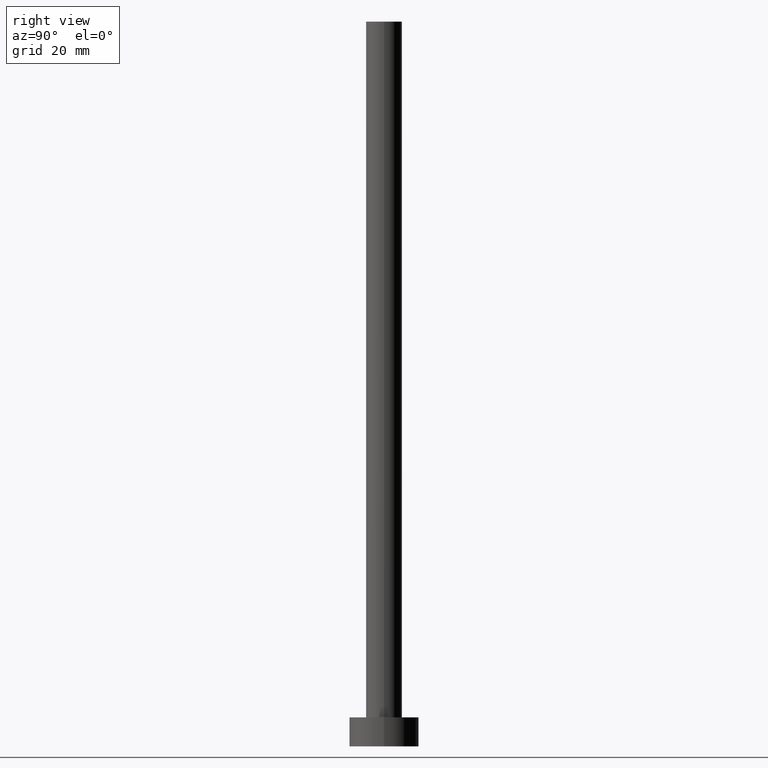
[diagram: clean part render]
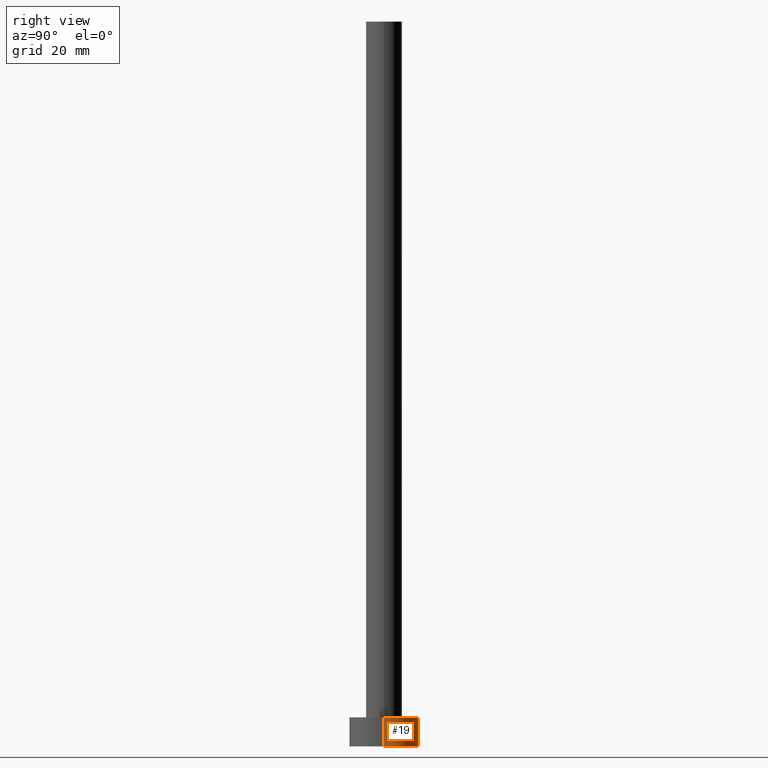
[diagram: same view with one face highlighted and labeled with its STEP entity id]
A machine part, right view. The second image highlights one B-rep face of the part: STEP entity #19.
In plain terms, the highlighted cylindrical surface (edge-blend (fillet) strip) has radius 6 mm, axis along (-0, -0, -1).
Its self-contained STEP definition (entity closure, byte-faithful):
#1 = CARTESIAN_POINT ( 'NONE',  ( 6.000000000000000888, 7.347880794884120722E-16, 5.000000000000000000 ) ) ;
#7 = CYLINDRICAL_SURFACE ( 'NONE', #59, 6.000000000000000888 ) ;
#10 = CARTESIAN_POINT ( 'NONE',  ( 0.000000000000000000, 0.000000000000000000, 5.000000000000000000 ) ) ;
#15 = DIRECTION ( 'NONE',  ( -0.000000000000000000, -0.000000000000000000, -1.000000000000000000 ) ) ;
#19 = ADVANCED_FACE ( 'NONE', ( #202 ), #7, .T. ) ;
#24 = AXIS2_PLACEMENT_3D ( 'NONE', #29, #219, #64 ) ;
#28 = VERTEX_POINT ( 'NONE', #125 ) ;
#29 = CARTESIAN_POINT ( 'NONE',  ( 0.000000000000000000, 0.000000000000000000, 0.000000000000000000 ) ) ;
#35 = VECTOR ( 'NONE', #15, 1000.000000000000000 ) ;
#42 = ORIENTED_EDGE ( 'NONE', *, *, #157, .F. ) ;
#45 = DIRECTION ( 'NONE',  ( -0.000000000000000000, -0.000000000000000000, -1.000000000000000000 ) ) ;
#54 = EDGE_CURVE ( 'NONE', #183, #162, #201, .T. ) ;
#59 = AXIS2_PLACEMENT_3D ( 'NONE', #220, #234, #123 ) ;
#61 = CIRCLE ( 'NONE', #148, 6.000000000000000888 ) ;
#62 = ORIENTED_EDGE ( 'NONE', *, *, #91, .T. ) ;
#64 = DIRECTION ( 'NONE',  ( 1.000000000000000000, 0.000000000000000000, 0.000000000000000000 ) ) ;
#83 = CARTESIAN_POINT ( 'NONE',  ( -6.000000000000000888, 0.000000000000000000, 5.000000000000000000 ) ) ;
#91 = EDGE_CURVE ( 'NONE', #28, #183, #144, .T. ) ;
#112 = DIRECTION ( 'NONE',  ( 1.000000000000000000, 0.000000000000000000, 0.000000000000000000 ) ) ;
#123 = DIRECTION ( 'NONE',  ( -1.000000000000000000, 0.000000000000000000, 0.000000000000000000 ) ) ;
#125 = CARTESIAN_POINT ( 'NONE',  ( 6.000000000000000888, 7.347880794884120722E-16, 5.000000000000000000 ) ) ;
#138 = VERTEX_POINT ( 'NONE', #83 ) ;
#143 = EDGE_CURVE ( 'NONE', #138, #162, #146, .T. ) ;
#144 = LINE ( 'NONE', #1, #189 ) ;
#146 = LINE ( 'NONE', #184, #35 ) ;
#148 = AXIS2_PLACEMENT_3D ( 'NONE', #10, #226, #112 ) ;
#157 = EDGE_CURVE ( 'NONE', #28, #138, #61, .T. ) ;
#162 = VERTEX_POINT ( 'NONE', #209 ) ;
#174 = ORIENTED_EDGE ( 'NONE', *, *, #54, .T. ) ;
#180 = ORIENTED_EDGE ( 'NONE', *, *, #143, .F. ) ;
#183 = VERTEX_POINT ( 'NONE', #192 ) ;
#184 = CARTESIAN_POINT ( 'NONE',  ( -6.000000000000000888, 0.000000000000000000, 5.000000000000000000 ) ) ;
#189 = VECTOR ( 'NONE', #45, 1000.000000000000000 ) ;
#192 = CARTESIAN_POINT ( 'NONE',  ( 6.000000000000000888, 7.347880794884120722E-16, 0.000000000000000000 ) ) ;
#201 = CIRCLE ( 'NONE', #24, 6.000000000000000888 ) ;
#202 = FACE_OUTER_BOUND ( 'NONE', #247, .T. ) ;
#209 = CARTESIAN_POINT ( 'NONE',  ( -6.000000000000000888, 0.000000000000000000, 0.000000000000000000 ) ) ;
#219 = DIRECTION ( 'NONE',  ( 0.000000000000000000, 0.000000000000000000, 1.000000000000000000 ) ) ;
#220 = CARTESIAN_POINT ( 'NONE',  ( 0.000000000000000000, 0.000000000000000000, 5.000000000000000000 ) ) ;
#226 = DIRECTION ( 'NONE',  ( 0.000000000000000000, 0.000000000000000000, 1.000000000000000000 ) ) ;
#234 = DIRECTION ( 'NONE',  ( -0.000000000000000000, -0.000000000000000000, -1.000000000000000000 ) ) ;
#247 = EDGE_LOOP ( 'NONE', ( #42, #62, #174, #180 ) ) ;